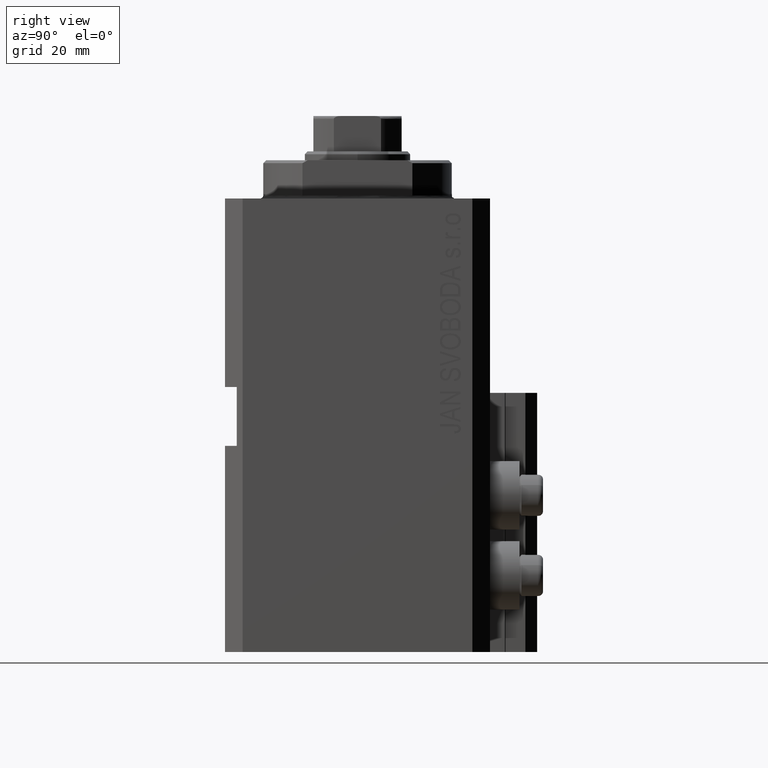
[diagram: clean part render]
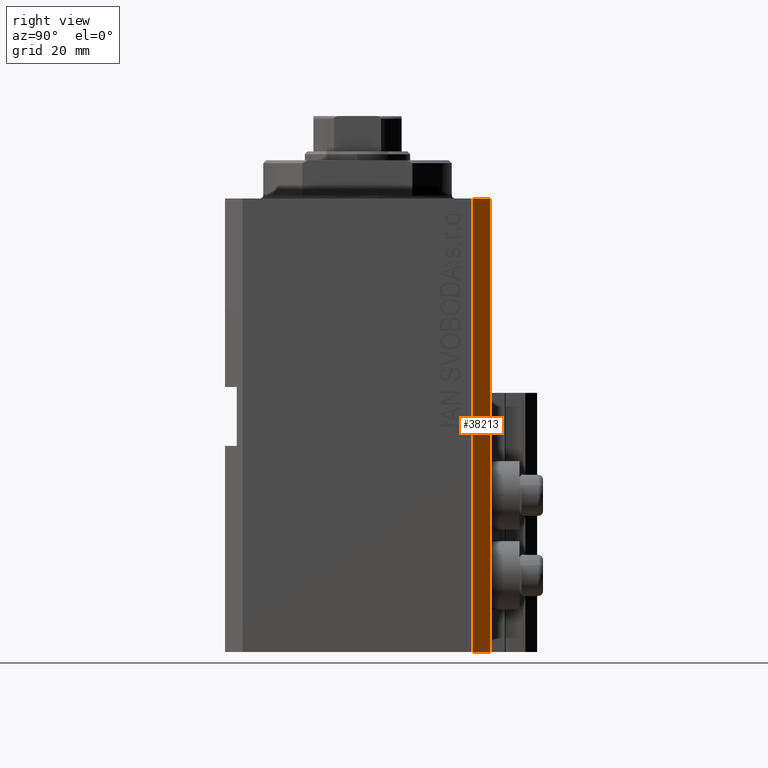
[diagram: same view with one face highlighted and labeled with its STEP entity id]
A machine part, right view. The second image highlights one B-rep face of the part: STEP entity #38213.
In plain terms, the highlighted planar face has unit normal (0.7071, 0.7071, 0).
Its self-contained STEP definition (entity closure, byte-faithful):
#1634 = CARTESIAN_POINT ( 'NONE',  ( 32.49999999999702993, 19.49999999999945999, -77.00000000000000000 ) ) ;
#2563 = CARTESIAN_POINT ( 'NONE',  ( 32.49999999999702993, 19.49999999999945999, -77.00000000000000000 ) ) ;
#4899 = ORIENTED_EDGE ( 'NONE', *, *, #23021, .T. ) ;
#5686 = LINE ( 'NONE', #1634, #41785 ) ;
#7139 = CARTESIAN_POINT ( 'NONE',  ( 32.49999999999702993, 19.49999999999945999, -77.00000000000000000 ) ) ;
#7688 = CARTESIAN_POINT ( 'NONE',  ( 32.49999999999702993, 19.49999999999945999, 0.000000000000000000 ) ) ;
#10656 = DIRECTION ( 'NONE',  ( -0.7071067811865351382, 0.7071067811865598962, 0.000000000000000000 ) ) ;
#13035 = EDGE_CURVE ( 'NONE', #33000, #15919, #13622, .T. ) ;
#13622 = LINE ( 'NONE', #29061, #13766 ) ;
#13766 = VECTOR ( 'NONE', #32875, 1000.000000000000000 ) ;
#15919 = VERTEX_POINT ( 'NONE', #7688 ) ;
#17793 = ORIENTED_EDGE ( 'NONE', *, *, #21663, .F. ) ;
#19480 = CARTESIAN_POINT ( 'NONE',  ( 29.49999999999707967, 22.49999999999951328, -77.00000000000000000 ) ) ;
#20326 = CARTESIAN_POINT ( 'NONE',  ( 32.49999999999702993, 19.49999999999945999, 0.000000000000000000 ) ) ;
#20589 = VERTEX_POINT ( 'NONE', #19480 ) ;
#21399 = PLANE ( 'NONE',  #29984 ) ;
#21663 = EDGE_CURVE ( 'NONE', #15919, #22374, #38467, .T. ) ;
#22374 = VERTEX_POINT ( 'NONE', #23687 ) ;
#23021 = EDGE_CURVE ( 'NONE', #33000, #20589, #5686, .T. ) ;
#23687 = CARTESIAN_POINT ( 'NONE',  ( 29.49999999999707967, 22.49999999999951328, 0.000000000000000000 ) ) ;
#24989 = VECTOR ( 'NONE', #45849, 1000.000000000000000 ) ;
#26670 = VECTOR ( 'NONE', #42811, 1000.000000000000000 ) ;
#29061 = CARTESIAN_POINT ( 'NONE',  ( 32.49999999999702993, 19.49999999999945999, -77.00000000000000000 ) ) ;
#29930 = EDGE_CURVE ( 'NONE', #20589, #22374, #34316, .T. ) ;
#29984 = AXIS2_PLACEMENT_3D ( 'NONE', #2563, #39053, #10656 ) ;
#32875 = DIRECTION ( 'NONE',  ( 0.000000000000000000, 0.000000000000000000, 1.000000000000000000 ) ) ;
#33000 = VERTEX_POINT ( 'NONE', #7139 ) ;
#33394 = ORIENTED_EDGE ( 'NONE', *, *, #29930, .T. ) ;
#34080 = CARTESIAN_POINT ( 'NONE',  ( 29.49999999999707967, 22.49999999999951328, -77.00000000000000000 ) ) ;
#34316 = LINE ( 'NONE', #34080, #26670 ) ;
#38213 = ADVANCED_FACE ( 'NONE', ( #43318 ), #21399, .T. ) ;
#38467 = LINE ( 'NONE', #20326, #24989 ) ;
#38834 = DIRECTION ( 'NONE',  ( -0.7071067811865352493, 0.7071067811865597852, 0.000000000000000000 ) ) ;
#38971 = ORIENTED_EDGE ( 'NONE', *, *, #13035, .F. ) ;
#39053 = DIRECTION ( 'NONE',  ( 0.7071067811865598962, 0.7071067811865351382, -0.000000000000000000 ) ) ;
#41785 = VECTOR ( 'NONE', #38834, 1000.000000000000000 ) ;
#42811 = DIRECTION ( 'NONE',  ( 0.000000000000000000, 0.000000000000000000, 1.000000000000000000 ) ) ;
#43318 = FACE_OUTER_BOUND ( 'NONE', #46929, .T. ) ;
#45849 = DIRECTION ( 'NONE',  ( -0.7071067811865352493, 0.7071067811865597852, 0.000000000000000000 ) ) ;
#46929 = EDGE_LOOP ( 'NONE', ( #17793, #38971, #4899, #33394 ) ) ;